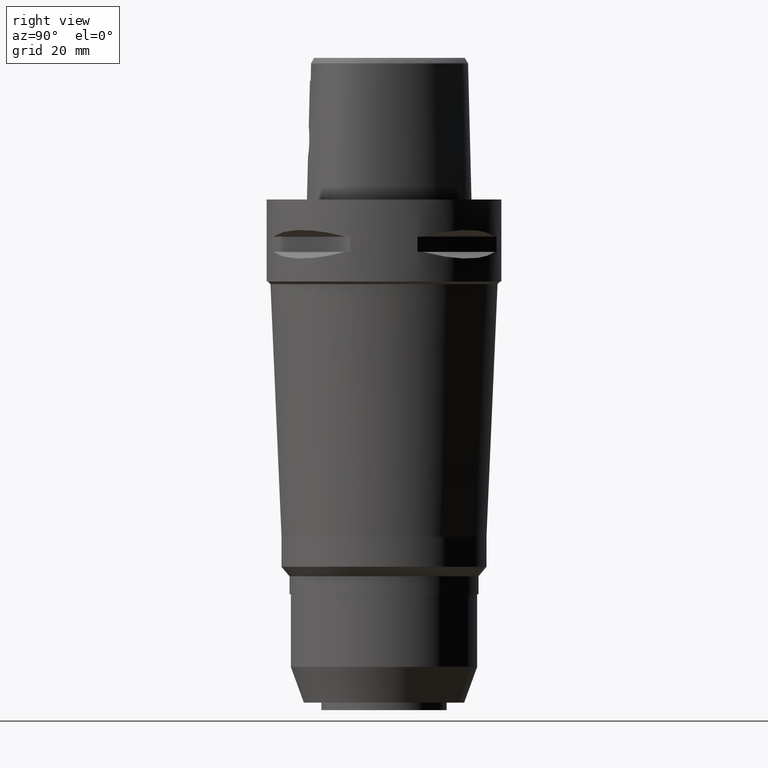
[diagram: clean part render]
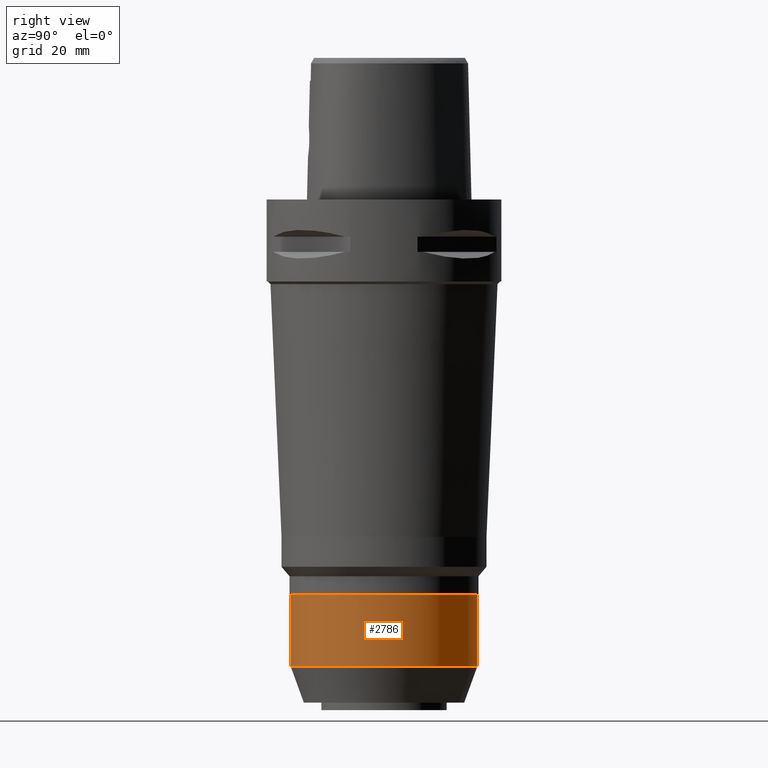
[diagram: same view with one face highlighted and labeled with its STEP entity id]
A machine part, right view. The second image highlights one B-rep face of the part: STEP entity #2786.
In plain terms, the highlighted cylindrical surface (partial cylindrical patch) has radius 25 mm, axis along (0, 0, -1).
Its self-contained STEP definition (entity closure, byte-faithful):
#682=CARTESIAN_POINT('',(0.E0,1.308535104889E-14,-1.059E2));
#683=DIRECTION('',(0.E0,0.E0,-1.E0));
#684=DIRECTION('',(0.E0,1.E0,0.E0));
#685=AXIS2_PLACEMENT_3D('',#682,#683,#684);
#690=DIRECTION('',(0.E0,5.010237239334E-14,-1.E0));
#691=VECTOR('',#690,1.95E1);
#692=CARTESIAN_POINT('',(0.E0,-2.5E1,-1.059E2));
#693=LINE('',#692,#691);
#697=DIRECTION('',(0.E0,-5.028456283841E-14,-1.E0));
#698=VECTOR('',#697,1.95E1);
#699=CARTESIAN_POINT('',(0.E0,2.5E1,-1.059E2));
#700=LINE('',#699,#698);
#711=CARTESIAN_POINT('',(0.E0,0.E0,-1.254E2));
#712=DIRECTION('',(0.E0,0.E0,1.E0));
#713=DIRECTION('',(0.E0,-1.E0,0.E0));
#714=AXIS2_PLACEMENT_3D('',#711,#712,#713);
#1716=CARTESIAN_POINT('',(0.E0,-2.5E1,-1.059E2));
#1717=CARTESIAN_POINT('',(0.E0,2.5E1,-1.059E2));
#1718=VERTEX_POINT('',#1716);
#1719=VERTEX_POINT('',#1717);
#1720=CARTESIAN_POINT('',(0.E0,2.5E1,-1.254E2));
#1721=VERTEX_POINT('',#1720);
#1722=CARTESIAN_POINT('',(0.E0,-2.5E1,-1.254E2));
#1723=VERTEX_POINT('',#1722);
#2774=CARTESIAN_POINT('',(0.E0,1.308535104889E-14,6.85E0));
#2775=DIRECTION('',(0.E0,0.E0,-1.E0));
#2776=DIRECTION('',(0.E0,-1.E0,0.E0));
#2777=AXIS2_PLACEMENT_3D('',#2774,#2775,#2776);
#2778=CYLINDRICAL_SURFACE('',#2777,2.5E1);
#2779=ORIENTED_EDGE('',*,*,#2764,.T.);
#2781=ORIENTED_EDGE('',*,*,#2780,.F.);
#2782=ORIENTED_EDGE('',*,*,#2767,.F.);
#2783=ORIENTED_EDGE('',*,*,#2754,.F.);
#2784=EDGE_LOOP('',(#2779,#2781,#2782,#2783));
#2785=FACE_OUTER_BOUND('',#2784,.F.);
#686=CIRCLE('',#685,2.5E1);
#715=CIRCLE('',#714,2.5E1);
#2754=EDGE_CURVE('',#1719,#1718,#686,.T.);
#2764=EDGE_CURVE('',#1719,#1721,#700,.T.);
#2767=EDGE_CURVE('',#1718,#1723,#693,.T.);
#2780=EDGE_CURVE('',#1723,#1721,#715,.T.);
#2786=ADVANCED_FACE('',(#2785),#2778,.T.);